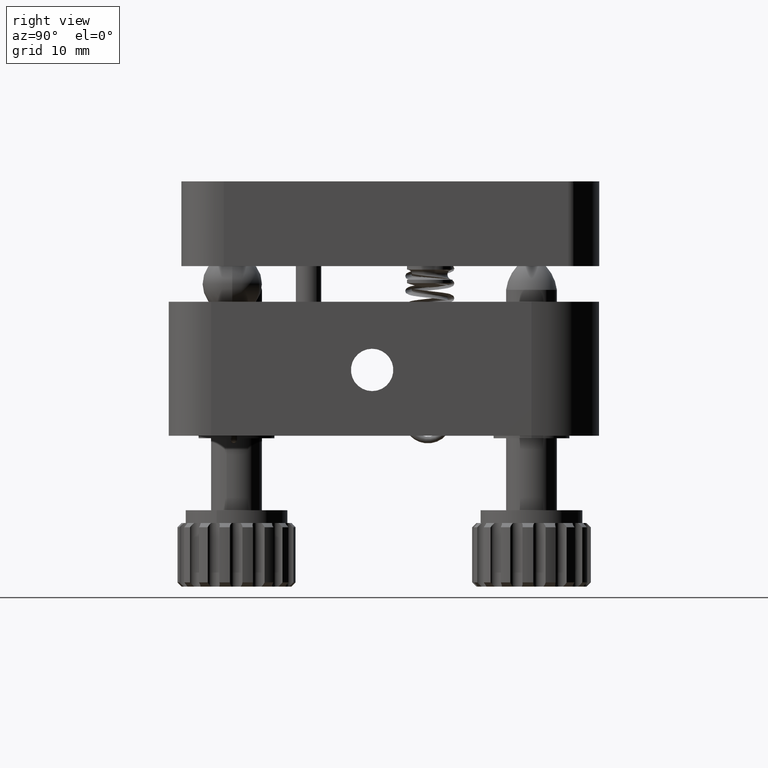
[diagram: clean part render]
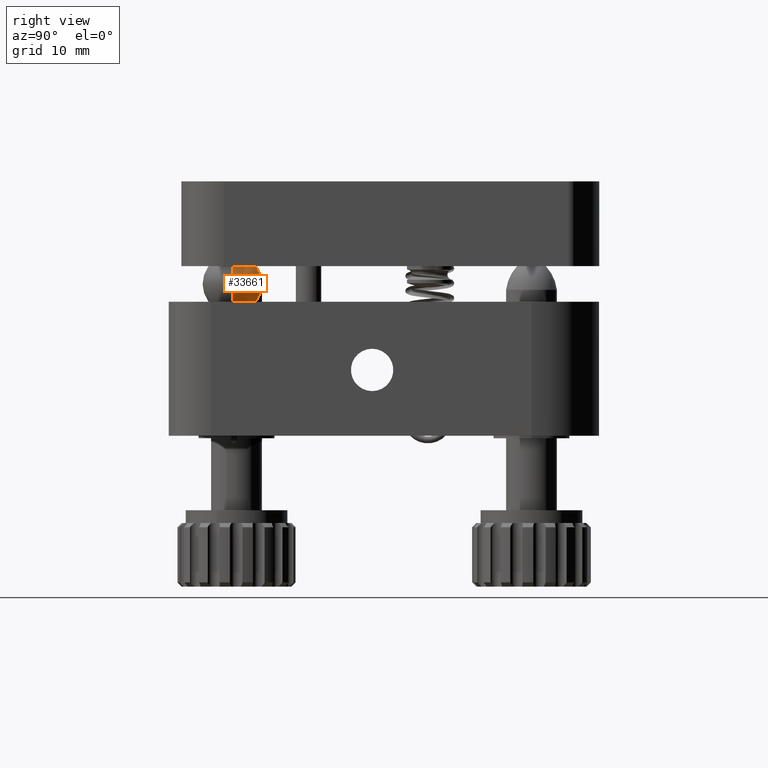
[diagram: same view with one face highlighted and labeled with its STEP entity id]
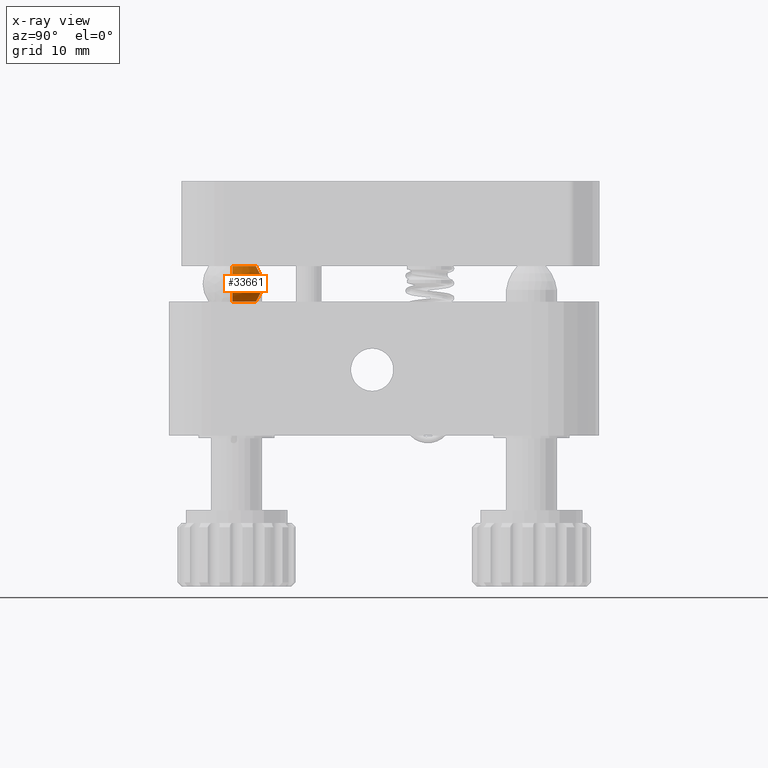
[diagram: x-ray of the same camera — body ghosted, the highlighted face saturated]
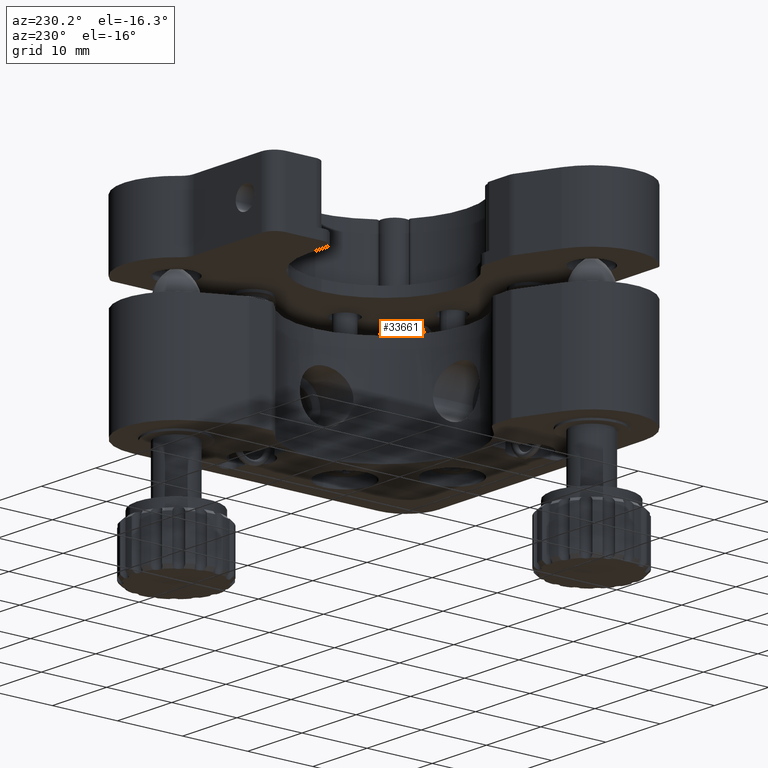
[diagram: same view with one face highlighted and labeled with its STEP entity id]
A machine part, right view. The second image highlights one B-rep face of the part: STEP entity #33661.
The next image is the same camera in x-ray: the body ghosted, the highlighted face saturated — about 0% of this face is hidden behind the body in this view.
A second angle (auxiliary view) of the same face is appended — the face is thin or edge-on in the first view.
In plain terms, the highlighted spherical surface has radius 3.5 mm.
Its self-contained STEP definition (entity closure, byte-faithful):
#1872 = CARTESIAN_POINT ( 'NONE',  ( 31.89393658312055600, 23.41778669584324700, 37.86366457255799400 ) ) ;
#4218 = SPHERICAL_SURFACE ( 'NONE', #8255, 3.499999999999999600 ) ;
#5757 = EDGE_LOOP ( 'NONE', ( #11310, #24775, #12943, #26825 ) ) ;
#6464 = CARTESIAN_POINT ( 'NONE',  ( 34.69393658312055400, 23.41778669584324700, 39.96366457255798800 ) ) ;
#6706 = FACE_OUTER_BOUND ( 'NONE', #5757, .T. ) ;
#8255 = AXIS2_PLACEMENT_3D ( 'NONE', #17102, #32878, #17208 ) ;
#8900 = AXIS2_PLACEMENT_3D ( 'NONE', #10417, #28696, #13058 ) ;
#9121 = DIRECTION ( 'NONE',  ( 1.000000000000000000, 0.0000000000000000000, 0.0000000000000000000 ) ) ;
#10417 = CARTESIAN_POINT ( 'NONE',  ( 34.69393658312055400, 23.41778669584324700, 42.06366457255799000 ) ) ;
#10908 = EDGE_CURVE ( 'NONE', #18776, #18674, #30692, .T. ) ;
#11254 = DIRECTION ( 'NONE',  ( -0.0000000000000000000, -0.0000000000000000000, 1.000000000000000000 ) ) ;
#11310 = ORIENTED_EDGE ( 'NONE', *, *, #31932, .F. ) ;
#12914 = EDGE_CURVE ( 'NONE', #31413, #18674, #29730, .T. ) ;
#12943 = ORIENTED_EDGE ( 'NONE', *, *, #10908, .T. ) ;
#13058 = DIRECTION ( 'NONE',  ( 1.000000000000000000, 0.0000000000000000000, 0.0000000000000000000 ) ) ;
#13439 = VERTEX_POINT ( 'NONE', #28430 ) ;
#13508 = DIRECTION ( 'NONE',  ( 0.0000000000000000000, 1.000000000000000000, 0.0000000000000000000 ) ) ;
#14681 = CARTESIAN_POINT ( 'NONE',  ( 37.49393658312055100, 23.41778669584324700, 42.06366457255799000 ) ) ;
#16305 = CIRCLE ( 'NONE', #22855, 2.799999999999997200 ) ;
#17102 = CARTESIAN_POINT ( 'NONE',  ( 34.69393658312055400, 23.41778669584324700, 39.96366457255798800 ) ) ;
#17208 = DIRECTION ( 'NONE',  ( -1.000000000000000000, 0.0000000000000000000, 0.0000000000000000000 ) ) ;
#18674 = VERTEX_POINT ( 'NONE', #25172 ) ;
#18776 = VERTEX_POINT ( 'NONE', #1872 ) ;
#20744 = AXIS2_PLACEMENT_3D ( 'NONE', #29166, #13508, #31766 ) ;
#22855 = AXIS2_PLACEMENT_3D ( 'NONE', #26933, #11254, #29536 ) ;
#24775 = ORIENTED_EDGE ( 'NONE', *, *, #25708, .T. ) ;
#24819 = DIRECTION ( 'NONE',  ( -1.224646799147353200E-016, -1.000000000000000000, -0.0000000000000000000 ) ) ;
#25172 = CARTESIAN_POINT ( 'NONE',  ( 31.89393658312055600, 23.41778669584324700, 42.06366457255799000 ) ) ;
#25708 = EDGE_CURVE ( 'NONE', #13439, #18776, #16305, .T. ) ;
#26825 = ORIENTED_EDGE ( 'NONE', *, *, #12914, .F. ) ;
#26933 = CARTESIAN_POINT ( 'NONE',  ( 34.69393658312055400, 23.41778669584324700, 37.86366457255799400 ) ) ;
#27506 = AXIS2_PLACEMENT_3D ( 'NONE', #6464, #24819, #9121 ) ;
#27769 = CIRCLE ( 'NONE', #27506, 3.499999999999996000 ) ;
#28430 = CARTESIAN_POINT ( 'NONE',  ( 37.49393658312055100, 23.41778669584324700, 37.86366457255799400 ) ) ;
#28696 = DIRECTION ( 'NONE',  ( -0.0000000000000000000, -0.0000000000000000000, 1.000000000000000000 ) ) ;
#29166 = CARTESIAN_POINT ( 'NONE',  ( 34.69393658312055400, 23.41778669584324700, 39.96366457255798800 ) ) ;
#29536 = DIRECTION ( 'NONE',  ( 1.000000000000000000, 0.0000000000000000000, 0.0000000000000000000 ) ) ;
#29730 = CIRCLE ( 'NONE', #8900, 2.799999999999997200 ) ;
#30692 = CIRCLE ( 'NONE', #20744, 3.499999999999996000 ) ;
#31413 = VERTEX_POINT ( 'NONE', #14681 ) ;
#31766 = DIRECTION ( 'NONE',  ( 0.0000000000000000000, 0.0000000000000000000, 1.000000000000000000 ) ) ;
#31932 = EDGE_CURVE ( 'NONE', #13439, #31413, #27769, .T. ) ;
#32878 = DIRECTION ( 'NONE',  ( 0.0000000000000000000, -1.000000000000000000, 0.0000000000000000000 ) ) ;
#33661 = ADVANCED_FACE ( 'NONE', ( #6706 ), #4218, .T. ) ;